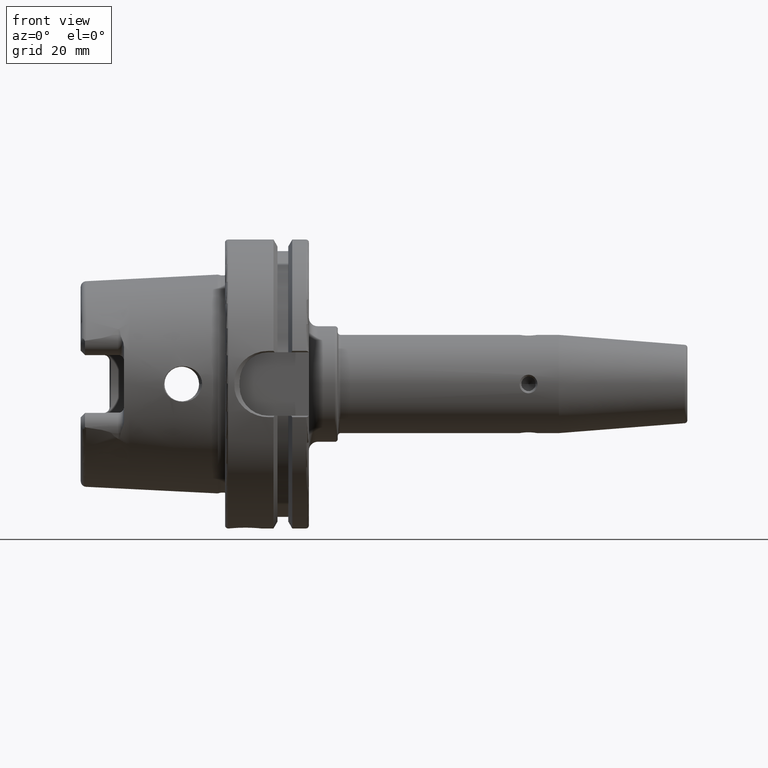
[diagram: clean part render]
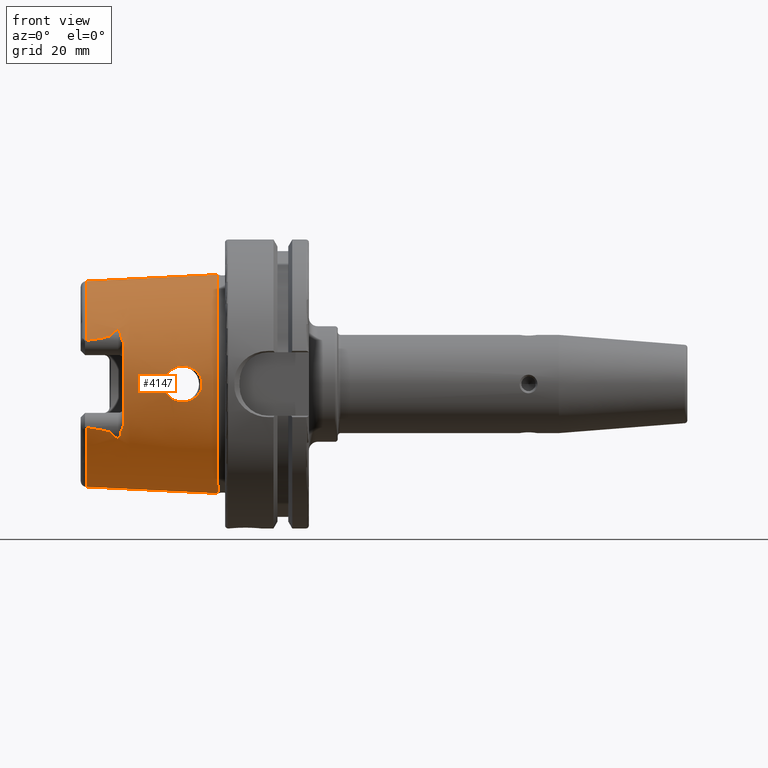
[diagram: same view with one face highlighted and labeled with its STEP entity id]
A machine part, front view. The second image highlights one B-rep face of the part: STEP entity #4147.
In plain terms, the highlighted conical surface has half-angle 2.868 deg.
Its self-contained STEP definition (entity closure, byte-faithful):
#1=DIRECTION('',(9.987481416594E-1,6.619317392920E-12,-5.002149070039E-2));
#2=VECTOR('',#1,4.565036319996E1);
#3=CARTESIAN_POINT('',(-4.810007223652E1,-1.496886079513E-9,-3.559122937082E1));
#4=LINE('',#3,#2);
#26=CARTESIAN_POINT('',(-2.506856824510E0,2.328065483424E-9,3.787472858912E1));
#136=CARTESIAN_POINT('',(-4.810007223652E1,0.E0,0.E0));
#137=DIRECTION('',(1.E0,0.E0,0.E0));
#138=DIRECTION('',(0.E0,-9.060367502718E-1,-4.231990160159E-1));
#139=AXIS2_PLACEMENT_3D('',#136,#137,#138);
#571=CARTESIAN_POINT('',(-4.810007223652E1,-3.224696179732E1,
-1.506217324853E1));
#572=CARTESIAN_POINT('',(-4.768125034070E1,-3.224506831817E1,
-1.511580774493E1));
#573=CARTESIAN_POINT('',(-4.690626056982E1,-3.223963569939E1,
-1.521868595765E1));
#574=CARTESIAN_POINT('',(-4.595034533651E1,-3.222846020490E1,
-1.535398346633E1));
#575=CARTESIAN_POINT('',(-4.514359334939E1,-3.221521107249E1,
-1.547529203366E1));
#576=CARTESIAN_POINT('',(-4.447175081349E1,-3.220108769669E1,
-1.558208985899E1));
#577=CARTESIAN_POINT('',(-4.387460189642E1,-3.218533173540E1,
-1.568295477002E1));
#578=CARTESIAN_POINT('',(-4.347679433676E1,-3.217360633425E1,
-1.575243975253E1));
#579=CARTESIAN_POINT('',(-4.271969143818E1,-3.214635552938E1,
-1.589383525450E1));
#580=CARTESIAN_POINT('',(-4.213843613459E1,-3.211931541435E1,
-1.601369628534E1));
#581=CARTESIAN_POINT('',(-4.165010731944E1,-3.209214675209E1,
-1.612263784758E1));
#582=CARTESIAN_POINT('',(-4.124989297011E1,-3.206583663112E1,
-1.621935789542E1));
#583=CARTESIAN_POINT('',(-4.088435021797E1,-3.203706691039E1,
-1.631647446597E1));
#584=CARTESIAN_POINT('',(-4.062389569482E1,-3.201431276191E1,
-1.638978819001E1));
#585=CARTESIAN_POINT('',(-4.017528449243E1,-3.196586309015E1,
-1.653314993553E1));
#586=CARTESIAN_POINT('',(-3.987110787539E1,-3.192128639843E1,
-1.665195582870E1));
#587=CARTESIAN_POINT('',(-3.961485185150E1,-3.187476281666E1,
-1.676847530489E1));
#588=CARTESIAN_POINT('',(-3.936121066017E1,-3.180806779719E1,
-1.692185865329E1));
#589=CARTESIAN_POINT('',(-3.924589964464E1,-3.175266464853E1,
-1.703765992987E1));
#590=CARTESIAN_POINT('',(-3.921043051466E1,-3.171811183804E1,
-1.710547363873E1));
#592=CARTESIAN_POINT('',(-3.7E1,-3.076088555164E1,-1.898413600456E1));
#593=CARTESIAN_POINT('',(-3.696011059877E1,-3.074976797559E1,
-1.900595547611E1));
#594=CARTESIAN_POINT('',(-3.688045815445E1,-3.074356238255E1,
-1.902343507620E1));
#595=CARTESIAN_POINT('',(-3.676952878892E1,-3.077684903073E1,
-1.898039125975E1));
#596=CARTESIAN_POINT('',(-3.668532719410E1,-3.083065788299E1,
-1.890088221009E1));
#597=CARTESIAN_POINT('',(-3.660892906784E1,-3.090162321952E1,
-1.879208847464E1));
#598=CARTESIAN_POINT('',(-3.655278628224E1,-3.097058935522E1,
-1.868360024641E1));
#599=CARTESIAN_POINT('',(-3.649757684373E1,-3.105098675832E1,
-1.855529897518E1));
#600=CARTESIAN_POINT('',(-3.643880626539E1,-3.116009513162E1,
-1.837719926184E1));
#601=CARTESIAN_POINT('',(-3.640785245826E1,-3.122855879594E1,
-1.826359790488E1));
#602=CARTESIAN_POINT('',(-3.636989992900E1,-3.132227946935E1,
-1.810636549292E1));
#603=CARTESIAN_POINT('',(-3.633510428649E1,-3.142486492275E1,
-1.793132695757E1));
#604=CARTESIAN_POINT('',(-3.630121665098E1,-3.154419016682E1,
-1.772421106518E1));
#605=CARTESIAN_POINT('',(-3.626980766716E1,-3.168216562875E1,
-1.747992254208E1));
#606=CARTESIAN_POINT('',(-3.625121506529E1,-3.179198553743E1,
-1.728084613435E1));
#607=CARTESIAN_POINT('',(-3.624325681735E1,-3.185059775442E1,
-1.717297858482E1));
#609=CARTESIAN_POINT('',(-3.624325681735E1,-3.185059775442E1,
-1.717297858482E1));
#610=CARTESIAN_POINT('',(-3.623573962467E1,-3.190596161493E1,
-1.707108917895E1));
#611=CARTESIAN_POINT('',(-3.620050364875E1,-3.202188570212E1,
-1.685747851728E1));
#612=CARTESIAN_POINT('',(-3.608714050121E1,-3.221162854307E1,
-1.650472953087E1));
#613=CARTESIAN_POINT('',(-3.593155119259E1,-3.241253798213E1,
-1.612441550246E1));
#614=CARTESIAN_POINT('',(-3.574847204665E1,-3.262750078326E1,
-1.570642652112E1));
#615=CARTESIAN_POINT('',(-3.555266074754E1,-3.285600989726E1,
-1.524660615316E1));
#616=CARTESIAN_POINT('',(-3.534924255641E1,-3.310995436156E1,
-1.471326003383E1));
#617=CARTESIAN_POINT('',(-3.516179843086E1,-3.338701622487E1,
-1.409857615658E1));
#618=CARTESIAN_POINT('',(-3.503097216524E1,-3.366647843961E1,
-1.343537306745E1));
#619=CARTESIAN_POINT('',(-3.5E1,-3.383666599864E1,-1.300069115847E1));
#620=CARTESIAN_POINT('',(-3.5E1,-3.391909039216E1,-1.278196417599E1));
#622=CARTESIAN_POINT('',(-3.5E1,-3.391909039216E1,1.278196417599E1));
#623=CARTESIAN_POINT('',(-3.5E1,-3.383550855417E1,1.300376263190E1));
#624=CARTESIAN_POINT('',(-3.503180327470E1,-3.366289207383E1,1.344443726961E1));
#625=CARTESIAN_POINT('',(-3.516638896298E1,-3.337870412075E1,1.411782650756E1));
#626=CARTESIAN_POINT('',(-3.535808501110E1,-3.309809225320E1,1.473888158648E1));
#627=CARTESIAN_POINT('',(-3.556291223335E1,-3.284382307314E1,1.527158543842E1));
#628=CARTESIAN_POINT('',(-3.575774039069E1,-3.261678258470E1,1.572755341528E1));
#629=CARTESIAN_POINT('',(-3.593853826271E1,-3.240400978822E1,1.614070840310E1));
#630=CARTESIAN_POINT('',(-3.609099971626E1,-3.220590617510E1,1.651541418061E1));
#631=CARTESIAN_POINT('',(-3.620146973348E1,-3.201923372971E1,1.686236485311E1));
#632=CARTESIAN_POINT('',(-3.623585638925E1,-3.190510164788E1,1.707267182747E1));
#633=CARTESIAN_POINT('',(-3.624325681735E1,-3.185059775442E1,1.717297858482E1));
#635=CARTESIAN_POINT('',(-3.624325681735E1,-3.185059775442E1,1.717297858482E1));
#636=CARTESIAN_POINT('',(-3.625015868701E1,-3.179976572639E1,1.726652778980E1));
#637=CARTESIAN_POINT('',(-3.626624367218E1,-3.170139344326E1,1.744530856838E1));
#638=CARTESIAN_POINT('',(-3.629639138467E1,-3.156317495438E1,1.769093277250E1));
#639=CARTESIAN_POINT('',(-3.633088478065E1,-3.143822900303E1,1.790836320839E1));
#640=CARTESIAN_POINT('',(-3.636730870725E1,-3.132912662428E1,1.809480987463E1));
#641=CARTESIAN_POINT('',(-3.640605901576E1,-3.123252521846E1,1.825701097423E1));
#642=CARTESIAN_POINT('',(-3.643806383233E1,-3.116186909712E1,1.837424582288E1));
#643=CARTESIAN_POINT('',(-3.649356550478E1,-3.105762518741E1,1.854456765566E1));
#644=CARTESIAN_POINT('',(-3.655138705667E1,-3.097246495077E1,1.868064533387E1));
#645=CARTESIAN_POINT('',(-3.660214390990E1,-3.090943094772E1,1.877987072629E1));
#646=CARTESIAN_POINT('',(-3.667864196465E1,-3.083554101850E1,1.889360135268E1));
#647=CARTESIAN_POINT('',(-3.676370343123E1,-3.078003622226E1,1.897571776221E1));
#648=CARTESIAN_POINT('',(-3.687278609981E1,-3.074388248528E1,1.902374439738E1));
#649=CARTESIAN_POINT('',(-3.695764140377E1,-3.074907978619E1,1.900730612386E1));
#650=CARTESIAN_POINT('',(-3.7E1,-3.076088555164E1,1.898413600456E1));
#652=DIRECTION('',(9.987481416594E-1,5.099767990520E-11,5.002149070093E-2));
#653=VECTOR('',#652,4.565036319993E1);
#654=CARTESIAN_POINT('',(-4.810007223652E1,0.E0,3.559122937082E1));
#655=LINE('',#654,#653);
#656=CARTESIAN_POINT('',(-2.506856824510E0,2.328065483424E-9,3.787472858912E1));
#657=CARTESIAN_POINT('',(-2.506856823707E0,-2.076218411329E0,3.787472858916E1));
#658=CARTESIAN_POINT('',(-2.517479294976E0,-6.235645407749E0,3.753282023841E1));
#659=CARTESIAN_POINT('',(-2.514048815500E0,-1.232903733741E1,3.599646138300E1));
#660=CARTESIAN_POINT('',(-2.515531340143E0,-1.809888612885E1,3.346535843819E1));
#661=CARTESIAN_POINT('',(-2.515405025342E0,-2.331549600390E1,3.006669313859E1));
#662=CARTESIAN_POINT('',(-2.515412025844E0,-2.798940143007E1,2.577825539334E1));
#663=CARTESIAN_POINT('',(-2.515081175376E0,-3.186842977065E1,2.078844832793E1));
#664=CARTESIAN_POINT('',(-2.514549084681E0,-3.486692032399E1,1.523318163523E1));
#665=CARTESIAN_POINT('',(-2.513797986215E0,-3.690142749271E1,9.271844114489E0));
#666=CARTESIAN_POINT('',(-2.512858963541E0,-3.792379627541E1,3.070046084030E0));
#667=CARTESIAN_POINT('',(-2.511755498899E0,-3.791220152248E1,
-3.205673011042E0));
#668=CARTESIAN_POINT('',(-2.510518826882E0,-3.687080947510E1,
-9.387962933144E0));
#669=CARTESIAN_POINT('',(-2.509179904178E0,-3.483022173566E1,
-1.531214701953E1));
#670=CARTESIAN_POINT('',(-2.507781876947E0,-3.184272353550E1,
-2.082388841985E1));
#671=CARTESIAN_POINT('',(-2.506330929081E0,-2.798853977027E1,
-2.577645267069E1));
#672=CARTESIAN_POINT('',(-2.504977020530E0,-2.334369013506E1,
-3.004350142457E1));
#673=CARTESIAN_POINT('',(-2.503352450968E0,-1.814839053561E1,
-3.343850172312E1));
#674=CARTESIAN_POINT('',(-2.503077065265E0,-1.238563581938E1,
-3.597798534248E1));
#675=CARTESIAN_POINT('',(-2.498141346808E0,-6.277891580022E0,
-3.752832106170E1));
#676=CARTESIAN_POINT('',(-2.506856824073E0,-2.092688666112E0,
-3.787472858899E1));
#677=CARTESIAN_POINT('',(-2.506856824488E0,-1.194711836391E-9,
-3.787472858910E1));
#679=CARTESIAN_POINT('',(-2.137954779159E1,-3.692989749565E1,0.E0));
#680=CARTESIAN_POINT('',(-2.137954779159E1,-3.692989749565E1,
-5.448989629281E-1));
#681=CARTESIAN_POINT('',(-2.122840206568E1,-3.691377468391E1,
-1.591551369417E0));
#682=CARTESIAN_POINT('',(-2.058067381081E1,-3.685095425614E1,
-3.070510322609E0));
#683=CARTESIAN_POINT('',(-1.955508631264E1,-3.677152193879E1,
-4.344594648525E0));
#684=CARTESIAN_POINT('',(-1.817546060947E1,-3.670342703511E1,
-5.366330267290E0));
#685=CARTESIAN_POINT('',(-1.651654921841E1,-3.668159021612E1,
-6.032277278482E0));
#686=CARTESIAN_POINT('',(-1.469639485357E1,-3.673402472452E1,
-6.265746660019E0));
#687=CARTESIAN_POINT('',(-1.288626121300E1,-3.686457393424E1,
-6.040609196107E0));
#688=CARTESIAN_POINT('',(-1.120225617890E1,-3.705462080171E1,
-5.380969475562E0));
#689=CARTESIAN_POINT('',(-9.753322062897E0,-3.727006405718E1,
-4.315030805471E0));
#690=CARTESIAN_POINT('',(-8.715031569970E0,-3.745299062967E1,
-3.002189595509E0));
#691=CARTESIAN_POINT('',(-8.092089937858E0,-3.757365373522E1,
-1.548222147810E0));
#692=CARTESIAN_POINT('',(-7.947522918152E0,-3.760282678591E1,
-5.264639808678E-1));
#693=CARTESIAN_POINT('',(-7.947522918152E0,-3.760282678591E1,0.E0));
#695=CARTESIAN_POINT('',(-7.947522918152E0,-3.760282678591E1,0.E0));
#696=CARTESIAN_POINT('',(-7.947522918152E0,-3.760282678591E1,
5.299383249650E-1));
#697=CARTESIAN_POINT('',(-8.092609726458E0,-3.757353656203E1,1.556206999103E0));
#698=CARTESIAN_POINT('',(-8.729956538742E0,-3.745013387614E1,3.028230909467E0));
#699=CARTESIAN_POINT('',(-9.760318395890E0,-3.726934192662E1,4.314257093562E0));
#700=CARTESIAN_POINT('',(-1.114952060407E1,-3.706193124840E1,5.348694306184E0));
#701=CARTESIAN_POINT('',(-1.283327818805E1,-3.686936489880E1,6.028514481537E0));
#702=CARTESIAN_POINT('',(-1.464721386332E1,-3.673651382208E1,6.265762847321E0));
#703=CARTESIAN_POINT('',(-1.646581439361E1,-3.668220188749E1,6.043741755978E0));
#704=CARTESIAN_POINT('',(-1.811208387480E1,-3.670144902342E1,5.400745162241E0));
#705=CARTESIAN_POINT('',(-1.952034648708E1,-3.676897878607E1,4.381718480970E0));
#706=CARTESIAN_POINT('',(-2.057809572639E1,-3.685060332372E1,3.082057302100E0));
#707=CARTESIAN_POINT('',(-2.123556268153E1,-3.691451243748E1,1.570194307192E0));
#708=CARTESIAN_POINT('',(-2.137954779159E1,-3.692989749565E1,
5.343907400995E-1));
#709=CARTESIAN_POINT('',(-2.137954779159E1,-3.692989749565E1,0.E0));
#719=CARTESIAN_POINT('',(-4.810007223652E1,-3.224696179732E1,
-1.506217324853E1));
#1022=CARTESIAN_POINT('',(-4.810007223652E1,0.E0,0.E0));
#1023=DIRECTION('',(1.E0,0.E0,0.E0));
#1024=DIRECTION('',(0.E0,0.E0,1.E0));
#1025=AXIS2_PLACEMENT_3D('',#1022,#1023,#1024);
#1034=CARTESIAN_POINT('',(-4.810007223652E1,-3.224696179732E1,
1.506217324853E1));
#1035=CARTESIAN_POINT('',(-4.768119170631E1,-3.224506805308E1,
1.511581525368E1));
#1036=CARTESIAN_POINT('',(-4.690610258942E1,-3.223963442922E1,
1.521870727601E1));
#1037=CARTESIAN_POINT('',(-4.595010075386E1,-3.222845694992E1,
1.535401871971E1));
#1038=CARTESIAN_POINT('',(-4.514329784576E1,-3.221520559121E1,
1.547533775455E1));
#1039=CARTESIAN_POINT('',(-4.447144021483E1,-3.220108056137E1,
1.558214032959E1));
#1040=CARTESIAN_POINT('',(-4.387426713103E1,-3.218532199383E1,
1.568301306783E1));
#1041=CARTESIAN_POINT('',(-4.347656100774E1,-3.217359934755E1,
1.575248065132E1));
#1042=CARTESIAN_POINT('',(-4.271913177195E1,-3.214633293478E1,
1.589394433377E1));
#1043=CARTESIAN_POINT('',(-4.213804589099E1,-3.211929517872E1,
1.601378061083E1));
#1044=CARTESIAN_POINT('',(-4.164975965955E1,-3.209212585594E1,
1.612271821411E1));
#1045=CARTESIAN_POINT('',(-4.124959154668E1,-3.206581462225E1,
1.621943494179E1));
#1046=CARTESIAN_POINT('',(-4.088414972047E1,-3.203705038968E1,
1.631652898898E1));
#1047=CARTESIAN_POINT('',(-4.062354990081E1,-3.201427948953E1,
1.638989130717E1));
#1048=CARTESIAN_POINT('',(-4.017509169470E1,-3.196583791347E1,
1.653321950343E1));
#1049=CARTESIAN_POINT('',(-3.987095907294E1,-3.192126186716E1,
1.665201894885E1));
#1050=CARTESIAN_POINT('',(-3.961477482183E1,-3.187474562087E1,
1.676851621928E1));
#1051=CARTESIAN_POINT('',(-3.936116071777E1,-3.180804973219E1,
1.692189790086E1));
#1052=CARTESIAN_POINT('',(-3.924589010651E1,-3.175265535681E1,
1.703767816589E1));
#1053=CARTESIAN_POINT('',(-3.921043051466E1,-3.171811183804E1,
1.710547363873E1));
#1059=CARTESIAN_POINT('',(-3.921043051466E1,-3.171811183804E1,
1.710547363873E1));
#1060=CARTESIAN_POINT('',(-3.909259683404E1,-3.160332230590E1,
1.733076078043E1));
#1061=CARTESIAN_POINT('',(-3.876076846635E1,-3.138174275794E1,
1.776563512907E1));
#1062=CARTESIAN_POINT('',(-3.799966191075E1,-3.106087605867E1,
1.839537148392E1));
#1063=CARTESIAN_POINT('',(-3.735640796715E1,-3.086022002541E1,
1.878918112279E1));
#1064=CARTESIAN_POINT('',(-3.7E1,-3.076088555164E1,1.898413600456E1));
#1095=CARTESIAN_POINT('',(-3.5E1,0.E0,0.E0));
#1096=DIRECTION('',(1.E0,0.E0,0.E0));
#1097=DIRECTION('',(0.E0,-9.357628524911E-1,3.526299532054E-1));
#1098=AXIS2_PLACEMENT_3D('',#1095,#1096,#1097);
#1166=CARTESIAN_POINT('',(-3.7E1,-3.076088555164E1,-1.898413600456E1));
#1167=CARTESIAN_POINT('',(-3.735473711941E1,-3.085975434339E1,
-1.879009507520E1));
#1168=CARTESIAN_POINT('',(-3.799599477757E1,-3.105964614642E1,
-1.839778532261E1));
#1169=CARTESIAN_POINT('',(-3.875766542428E1,-3.138010316010E1,
-1.776885302101E1));
#1170=CARTESIAN_POINT('',(-3.909176061575E1,-3.160250769070E1,
-1.733235955277E1));
#1171=CARTESIAN_POINT('',(-3.921043051466E1,-3.171811183804E1,
-1.710547363873E1));
#3001=CARTESIAN_POINT('',(-4.810007223652E1,-2.245327780064E-9,
-3.559122937083E1));
#3003=VERTEX_POINT('',#3001);
#3005=CARTESIAN_POINT('',(-2.506856824488E0,-1.194711836391E-9,
-3.787472858910E1));
#3006=VERTEX_POINT('',#3005);
#3007=VERTEX_POINT('',#26);
#3008=CARTESIAN_POINT('',(-4.810007223652E1,0.E0,3.559122937082E1));
#3009=VERTEX_POINT('',#3008);
#3024=VERTEX_POINT('',#719);
#3116=CARTESIAN_POINT('',(-7.947522918152E0,-3.760282678591E1,0.E0));
#3117=VERTEX_POINT('',#3116);
#3118=CARTESIAN_POINT('',(-2.137954779159E1,-3.692989749565E1,0.E0));
#3119=VERTEX_POINT('',#3118);
#3120=VERTEX_POINT('',#590);
#3121=VERTEX_POINT('',#1166);
#3122=VERTEX_POINT('',#607);
#3123=VERTEX_POINT('',#620);
#3124=CARTESIAN_POINT('',(-3.5E1,-3.391909039216E1,1.278196417598E1));
#3125=VERTEX_POINT('',#3124);
#3126=VERTEX_POINT('',#633);
#3127=VERTEX_POINT('',#650);
#3128=VERTEX_POINT('',#1059);
#3129=VERTEX_POINT('',#1034);
#4111=CARTESIAN_POINT('',(-2.530010620466E1,0.E0,0.E0));
#4112=DIRECTION('',(1.E0,0.E0,0.E0));
#4113=DIRECTION('',(0.E0,0.E0,1.E0));
#4114=AXIS2_PLACEMENT_3D('',#4111,#4112,#4113);
#4115=CONICAL_SURFACE('',#4114,3.673348194288E1,2.868056E0);
#4116=ORIENTED_EDGE('',*,*,#3622,.F.);
#4118=ORIENTED_EDGE('',*,*,#4117,.T.);
#4120=ORIENTED_EDGE('',*,*,#4119,.F.);
#4122=ORIENTED_EDGE('',*,*,#4121,.T.);
#4124=ORIENTED_EDGE('',*,*,#4123,.T.);
#4126=ORIENTED_EDGE('',*,*,#4125,.F.);
#4128=ORIENTED_EDGE('',*,*,#4127,.T.);
#4130=ORIENTED_EDGE('',*,*,#4129,.T.);
#4132=ORIENTED_EDGE('',*,*,#4131,.F.);
#4134=ORIENTED_EDGE('',*,*,#4133,.F.);
#4136=ORIENTED_EDGE('',*,*,#4135,.F.);
#4137=ORIENTED_EDGE('',*,*,#3586,.T.);
#4139=ORIENTED_EDGE('',*,*,#4138,.T.);
#4140=ORIENTED_EDGE('',*,*,#3582,.F.);
#4141=EDGE_LOOP('',(#4116,#4118,#4120,#4122,#4124,#4126,#4128,#4130,#4132,#4134,
#4136,#4137,#4139,#4140));
#4142=FACE_OUTER_BOUND('',#4141,.F.);
#4143=ORIENTED_EDGE('',*,*,#4060,.T.);
#4144=ORIENTED_EDGE('',*,*,#4077,.T.);
#4145=EDGE_LOOP('',(#4143,#4144));
#4146=FACE_BOUND('',#4145,.F.);
#4147=ADVANCED_FACE('',(#4142,#4146),#4115,.T.);
#140=CIRCLE('',#139,3.559122937083E1);
#591=B_SPLINE_CURVE_WITH_KNOTS('',3,(#571,#572,#573,#574,#575,#576,#577,#578,
#579,#580,#581,#582,#583,#584,#585,#586,#587,#588,#589,#590),.UNSPECIFIED.,.F.,
.F.,(4,1,1,1,1,1,1,1,1,1,1,1,1,1,1,1,1,4),(0.E0,5.882352941176E-2,
1.176470588235E-1,1.764705882353E-1,2.352941176471E-1,2.941176470588E-1,
3.529411764706E-1,4.117647058824E-1,4.705882352941E-1,5.294117647059E-1,
5.882352941176E-1,6.470588235294E-1,7.058823529412E-1,7.647058823529E-1,
8.235294117647E-1,8.823529411765E-1,9.411764705882E-1,1.E0),.UNSPECIFIED.);
#608=B_SPLINE_CURVE_WITH_KNOTS('',3,(#592,#593,#594,#595,#596,#597,#598,#599,
#600,#601,#602,#603,#604,#605,#606,#607),.UNSPECIFIED.,.F.,.F.,(4,1,1,1,1,1,1,1,
1,1,1,1,1,4),(0.E0,7.692307692308E-2,1.538461538462E-1,2.307692307692E-1,
3.076923076923E-1,3.846153846154E-1,4.615384615385E-1,5.384615384615E-1,
6.153846153846E-1,6.923076923077E-1,7.692307692308E-1,8.461538461538E-1,
9.230769230769E-1,1.E0),.UNSPECIFIED.);
#621=B_SPLINE_CURVE_WITH_KNOTS('',3,(#609,#610,#611,#612,#613,#614,#615,#616,
#617,#618,#619,#620),.UNSPECIFIED.,.F.,.F.,(4,1,1,1,1,1,1,1,1,4),(0.E0,
1.111111111111E-1,2.222222222222E-1,3.333333333333E-1,4.444444444444E-1,
5.555555555556E-1,6.666666666667E-1,7.777777777778E-1,8.888888888889E-1,1.E0),
.UNSPECIFIED.);
#634=B_SPLINE_CURVE_WITH_KNOTS('',3,(#622,#623,#624,#625,#626,#627,#628,#629,
#630,#631,#632,#633),.UNSPECIFIED.,.F.,.F.,(4,1,1,1,1,1,1,1,1,4),(0.E0,
1.111111111111E-1,2.222222222222E-1,3.333333333333E-1,4.444444444444E-1,
5.555555555556E-1,6.666666666667E-1,7.777777777778E-1,8.888888888889E-1,1.E0),
.UNSPECIFIED.);
#651=B_SPLINE_CURVE_WITH_KNOTS('',3,(#635,#636,#637,#638,#639,#640,#641,#642,
#643,#644,#645,#646,#647,#648,#649,#650),.UNSPECIFIED.,.F.,.F.,(4,1,1,1,1,1,1,1,
1,1,1,1,1,4),(0.E0,7.692307692308E-2,1.538461538462E-1,2.307692307692E-1,
3.076923076923E-1,3.846153846154E-1,4.615384615385E-1,5.384615384615E-1,
6.153846153846E-1,6.923076923077E-1,7.692307692308E-1,8.461538461538E-1,
9.230769230769E-1,1.E0),.UNSPECIFIED.);
#678=B_SPLINE_CURVE_WITH_KNOTS('',3,(#656,#657,#658,#659,#660,#661,#662,#663,
#664,#665,#666,#667,#668,#669,#670,#671,#672,#673,#674,#675,#676,#677),
.UNSPECIFIED.,.F.,.F.,(4,1,1,1,1,1,1,1,1,1,1,1,1,1,1,1,1,1,1,4),(0.E0,
5.263157894737E-2,1.052631578947E-1,1.578947368421E-1,2.105263157895E-1,
2.631578947368E-1,3.157894736842E-1,3.684210526316E-1,4.210526315789E-1,
4.736842105263E-1,5.263157894737E-1,5.789473684211E-1,6.315789473684E-1,
6.842105263158E-1,7.368421052632E-1,7.894736842105E-1,8.421052631579E-1,
8.947368421053E-1,9.473684210526E-1,1.E0),.UNSPECIFIED.);
#694=B_SPLINE_CURVE_WITH_KNOTS('',3,(#679,#680,#681,#682,#683,#684,#685,#686,
#687,#688,#689,#690,#691,#692,#693),.UNSPECIFIED.,.F.,.F.,(4,1,1,1,1,1,1,1,1,1,
1,1,4),(0.E0,8.333333333333E-2,1.666666666667E-1,2.5E-1,3.333333333333E-1,
4.166666666667E-1,5.E-1,5.833333333333E-1,6.666666666667E-1,7.5E-1,
8.333333333333E-1,9.166666666667E-1,1.E0),.UNSPECIFIED.);
#710=B_SPLINE_CURVE_WITH_KNOTS('',3,(#695,#696,#697,#698,#699,#700,#701,#702,
#703,#704,#705,#706,#707,#708,#709),.UNSPECIFIED.,.F.,.F.,(4,1,1,1,1,1,1,1,1,1,
1,1,4),(0.E0,8.333333333333E-2,1.666666666667E-1,2.5E-1,3.333333333333E-1,
4.166666666667E-1,5.E-1,5.833333333333E-1,6.666666666667E-1,7.5E-1,
8.333333333333E-1,9.166666666667E-1,1.E0),.UNSPECIFIED.);
#1026=CIRCLE('',#1025,3.559122937083E1);
#1054=B_SPLINE_CURVE_WITH_KNOTS('',3,(#1034,#1035,#1036,#1037,#1038,#1039,#1040,
#1041,#1042,#1043,#1044,#1045,#1046,#1047,#1048,#1049,#1050,#1051,#1052,#1053),
.UNSPECIFIED.,.F.,.F.,(4,1,1,1,1,1,1,1,1,1,1,1,1,1,1,1,1,4),(0.E0,
5.882352941176E-2,1.176470588235E-1,1.764705882353E-1,2.352941176471E-1,
2.941176470588E-1,3.529411764706E-1,4.117647058824E-1,4.705882352941E-1,
5.294117647059E-1,5.882352941176E-1,6.470588235294E-1,7.058823529412E-1,
7.647058823529E-1,8.235294117647E-1,8.823529411765E-1,9.411764705882E-1,1.E0),
.UNSPECIFIED.);
#1065=B_SPLINE_CURVE_WITH_KNOTS('',3,(#1059,#1060,#1061,#1062,#1063,#1064),
.UNSPECIFIED.,.F.,.F.,(4,1,1,4),(0.E0,3.333333333333E-1,6.666666666667E-1,1.E0),
.UNSPECIFIED.);
#1099=CIRCLE('',#1098,3.624752820852E1);
#1172=B_SPLINE_CURVE_WITH_KNOTS('',3,(#1166,#1167,#1168,#1169,#1170,#1171),
.UNSPECIFIED.,.F.,.F.,(4,1,1,4),(0.E0,3.333333333333E-1,6.666666666667E-1,1.E0),
.UNSPECIFIED.);
#3582=EDGE_CURVE('',#3003,#3006,#4,.T.);
#3586=EDGE_CURVE('',#3009,#3007,#655,.T.);
#3622=EDGE_CURVE('',#3024,#3003,#140,.T.);
#4060=EDGE_CURVE('',#3119,#3117,#694,.T.);
#4077=EDGE_CURVE('',#3117,#3119,#710,.T.);
#4117=EDGE_CURVE('',#3024,#3120,#591,.T.);
#4119=EDGE_CURVE('',#3121,#3120,#1172,.T.);
#4121=EDGE_CURVE('',#3121,#3122,#608,.T.);
#4123=EDGE_CURVE('',#3122,#3123,#621,.T.);
#4125=EDGE_CURVE('',#3125,#3123,#1099,.T.);
#4127=EDGE_CURVE('',#3125,#3126,#634,.T.);
#4129=EDGE_CURVE('',#3126,#3127,#651,.T.);
#4131=EDGE_CURVE('',#3128,#3127,#1065,.T.);
#4133=EDGE_CURVE('',#3129,#3128,#1054,.T.);
#4135=EDGE_CURVE('',#3009,#3129,#1026,.T.);
#4138=EDGE_CURVE('',#3007,#3006,#678,.T.);